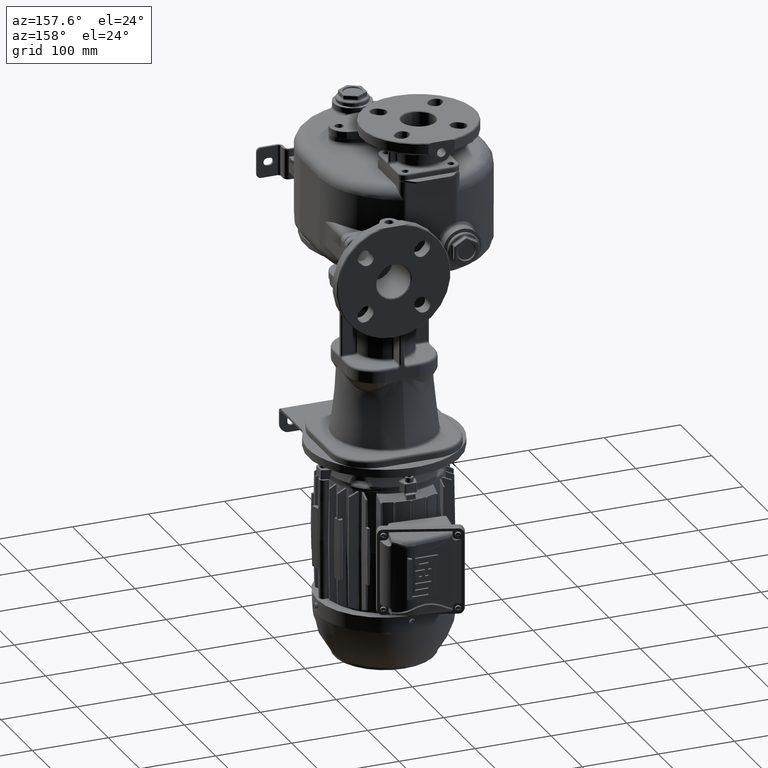
[diagram: clean part render]
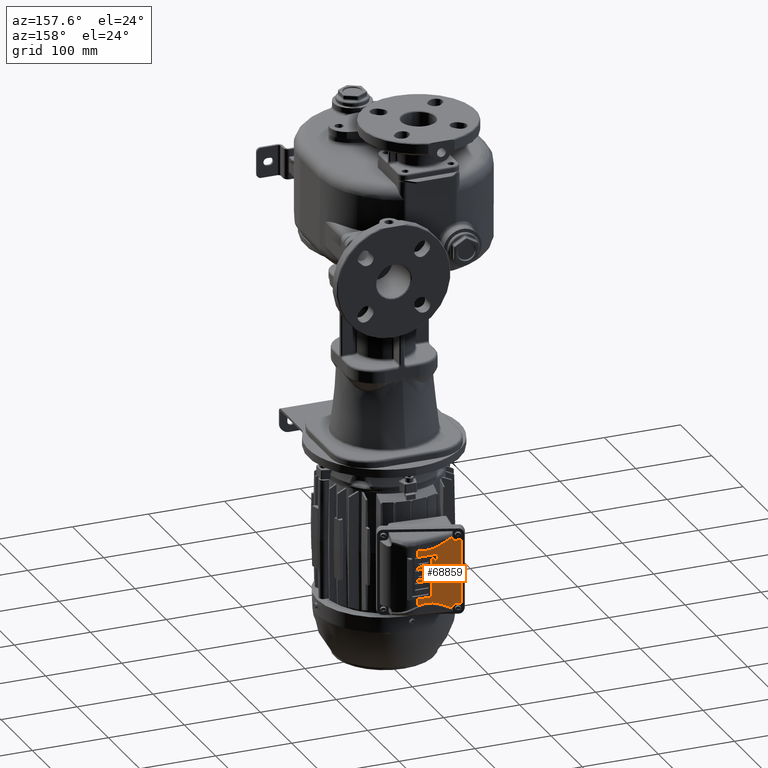
[diagram: same view with one face highlighted and labeled with its STEP entity id]
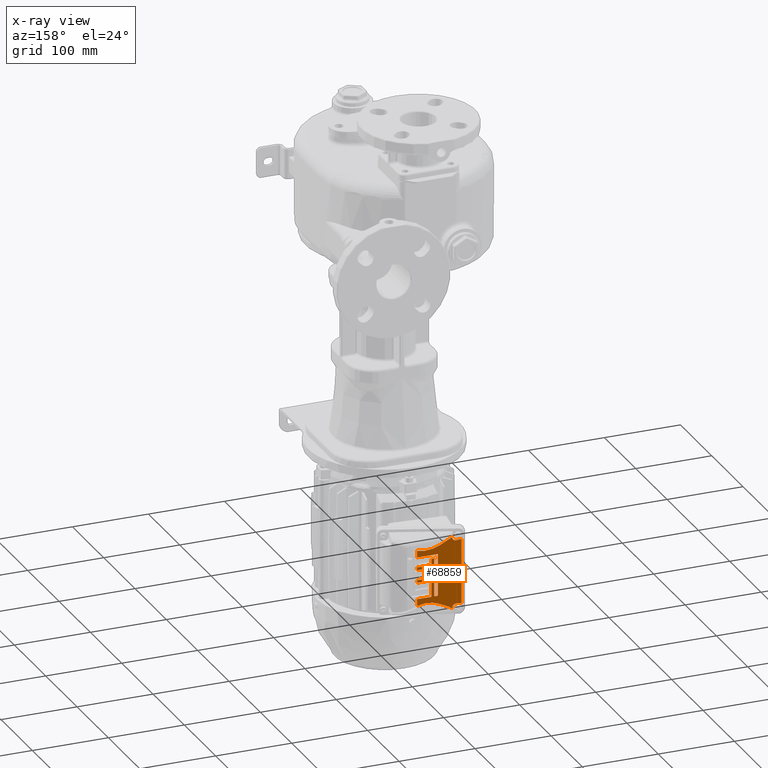
[diagram: x-ray of the same camera — body ghosted, the highlighted face saturated]
A machine part, auxiliary view. The second image highlights one B-rep face of the part: STEP entity #68859.
The next image is the same camera in x-ray: the body ghosted, the highlighted face saturated — about 0% of this face is hidden behind the body in this view.
In plain terms, the highlighted planar face has unit normal (0, -1, 0).
Its self-contained STEP definition (entity closure, byte-faithful):
#16227=DIRECTION('',(0.E0,0.E0,-1.E0));
#16228=VECTOR('',#16227,8.5E1);
#16229=CARTESIAN_POINT('',(-3.743685843754E1,2.657774536875E2,
-4.095007210215E2));
#16230=LINE('',#16229,#16228);
#16409=DIRECTION('',(8.987940462991E-1,0.E0,-4.383711467891E-1));
#16410=VECTOR('',#16409,1.803001470572E1);
#16411=CARTESIAN_POINT('',(-2.538298318595E1,2.657774536875E2,
-4.048518024656E2));
#16412=LINE('',#16411,#16410);
#16413=DIRECTION('',(0.E0,1.258105968686E-13,1.E0));
#16414=VECTOR('',#16413,4.518174166216E-1);
#16415=CARTESIAN_POINT('',(-2.538298318595E1,2.657774536875E2,
-4.053036198823E2));
#16416=LINE('',#16415,#16414);
#16417=DIRECTION('',(9.981864553787E-1,0.E0,-6.019800909087E-2));
#16418=VECTOR('',#16417,6.466191694984E0);
#16419=CARTESIAN_POINT('',(-3.743685843754E1,2.657774536875E2,
-4.095007210215E2));
#16420=LINE('',#16419,#16418);
#16421=DIRECTION('',(-9.981864553787E-1,0.E0,-6.019800909090E-2));
#16422=VECTOR('',#16421,6.466191694984E0);
#16423=CARTESIAN_POINT('',(-3.098239346973E1,2.657774536875E2,
-4.941114691551E2));
#16424=LINE('',#16423,#16422);
#16425=CARTESIAN_POINT('',(-3.098239346973E1,2.657774536875E2,
-4.941114691551E2));
#16426=CARTESIAN_POINT('',(-3.054428850786E1,2.657774536875E2,
-4.940850481930E2));
#16427=CARTESIAN_POINT('',(-2.975239341491E1,2.657774536875E2,
-4.941217590927E2));
#16428=CARTESIAN_POINT('',(-2.873031167259E1,2.657774536875E2,
-4.943528841054E2));
#16429=CARTESIAN_POINT('',(-2.784113988335E1,2.657774536875E2,
-4.947251759983E2));
#16430=CARTESIAN_POINT('',(-2.707038250361E1,2.657774536875E2,
-4.952232387034E2));
#16431=CARTESIAN_POINT('',(-2.641573367365E1,2.657774536875E2,
-4.958446231111E2));
#16432=CARTESIAN_POINT('',(-2.588584674281E1,2.657774536875E2,
-4.965985201536E2));
#16433=CARTESIAN_POINT('',(-2.556698055607E1,2.657774536875E2,
-4.973570969748E2));
#16434=CARTESIAN_POINT('',(-2.541462963808E1,2.657774536875E2,
-4.980730832316E2));
#16435=CARTESIAN_POINT('',(-2.538298318595E1,2.657774536875E2,
-4.984783716967E2));
#16436=CARTESIAN_POINT('',(-2.538298318595E1,2.657774536875E2,
-4.986978221608E2));
#16438=DIRECTION('',(0.E0,-1.258105968687E-13,1.E0));
#16439=VECTOR('',#16438,4.518174166215E-1);
#16440=CARTESIAN_POINT('',(-2.538298318595E1,2.657774536875E2,
-4.991496395774E2));
#16441=LINE('',#16440,#16439);
#16442=DIRECTION('',(-8.987940462991E-1,0.E0,-4.383711467891E-1));
#16443=VECTOR('',#16442,1.803001470572E1);
#16444=CARTESIAN_POINT('',(-9.177713313766E0,2.657774536875E2,
-4.912458013542E2));
#16445=LINE('',#16444,#16443);
#16446=CARTESIAN_POINT('',(9.171895553443E0,2.657774536875E2,
-5.288680749063E2));
#16447=DIRECTION('',(0.E0,-1.E0,0.E0));
#16448=DIRECTION('',(2.777244942154E-1,0.E0,9.606607649492E-1));
#16449=AXIS2_PLACEMENT_3D('',#16446,#16447,#16448);
#16451=DIRECTION('',(0.E0,0.E0,-1.E0));
#16452=VECTOR('',#16451,1.963543390946E1);
#16453=CARTESIAN_POINT('',(1.898528680962E0,2.657774536875E2,
-4.590718929557E2));
#16454=LINE('',#16453,#16452);
#16455=DIRECTION('',(0.E0,0.E0,-1.E0));
#16456=VECTOR('',#16455,1.119098946501E1);
#16457=CARTESIAN_POINT('',(1.898528680962E0,2.657774536875E2,
-4.421830040668E2));
#16458=LINE('',#16457,#16456);
#16459=DIRECTION('',(0.E0,0.E0,1.E0));
#16460=VECTOR('',#16459,6.269305755557E0);
#16461=CARTESIAN_POINT('',(6.820212390417E0,2.657774536875E2,
-4.484523098224E2));
#16462=LINE('',#16461,#16460);
#16463=DIRECTION('',(0.E0,0.E0,-1.E0));
#16464=VECTOR('',#16463,6.269305755556E0);
#16465=CARTESIAN_POINT('',(1.034297312541E1,2.657774536875E2,
-4.421830040668E2));
#16466=LINE('',#16465,#16464);
#16467=DIRECTION('',(0.E0,0.E0,-1.E0));
#16468=VECTOR('',#16467,6.269305755556E0);
#16469=CARTESIAN_POINT('',(1.898528680962E0,2.657774536875E2,
-4.302157988874E2));
#16470=LINE('',#16469,#16468);
#16471=DIRECTION('',(0.E0,0.E0,1.E0));
#16472=VECTOR('',#16471,4.849152797778E1);
#16473=CARTESIAN_POINT('',(-1.624232054028E0,2.657774536875E2,
-4.787073268651E2));
#16474=LINE('',#16473,#16472);
#16475=DIRECTION('',(0.E0,0.E0,-1.E0));
#16476=VECTOR('',#16475,5.341321168723E1);
#16477=CARTESIAN_POINT('',(-6.545915763482E0,2.657774536875E2,
-4.252941151779E2));
#16478=LINE('',#16477,#16476);
#16479=CARTESIAN_POINT('',(9.171895553443E0,2.657774536875E2,
-3.751333671367E2));
#16480=DIRECTION('',(0.E0,-1.E0,0.E0));
#16481=DIRECTION('',(-4.383711467845E-1,0.E0,-8.987940463014E-1));
#16482=AXIS2_PLACEMENT_3D('',#16479,#16480,#16481);
#16484=CARTESIAN_POINT('',(-2.538298318595E1,2.657774536875E2,
-4.048518024656E2));
#16888=CARTESIAN_POINT('',(2.079705815528E1,2.657774536875E2,
-4.153452959709E2));
#16893=DIRECTION('',(5.062250523353E-9,0.E0,1.E0));
#16894=VECTOR('',#16893,8.861249862590E0);
#16895=CARTESIAN_POINT('',(2.079705811042E1,2.657774536875E2,
-4.242065458335E2));
#16896=LINE('',#16895,#16894);
#16911=DIRECTION('',(-1.563179170088E-13,0.E0,1.E0));
#16912=VECTOR('',#16911,3.522760734990E0);
#16913=CARTESIAN_POINT('',(2.079705811042E1,2.657774536875E2,
-4.410954347224E2));
#16914=LINE('',#16913,#16912);
#16929=DIRECTION('',(-8.068021523036E-14,0.E0,1.E0));
#16930=VECTOR('',#16929,3.522760734990E0);
#16931=CARTESIAN_POINT('',(2.079705811042E1,2.657774536875E2,
-4.579843236112E2));
#16932=LINE('',#16931,#16930);
#16993=DIRECTION('',(-5.062239698325E-9,0.E0,1.E0));
#16994=VECTOR('',#16993,8.861249862590E0);
#16995=CARTESIAN_POINT('',(2.079705815528E1,2.657774536875E2,
-4.886561460722E2));
#16996=LINE('',#16995,#16994);
#17064=DIRECTION('',(1.E0,0.E0,1.515512478885E-14));
#17065=VECTOR('',#17064,2.625540452946E1);
#17066=CARTESIAN_POINT('',(-5.458346419038E0,2.657774536875E2,
-4.242065458335E2));
#17067=LINE('',#17066,#17065);
#17092=CARTESIAN_POINT('',(-5.366627095836E-1,2.657774536875E2,
-4.291282295429E2));
#17093=CARTESIAN_POINT('',(-6.272934882873E-1,2.657774536875E2,
-4.291282295429E2));
#17094=CARTESIAN_POINT('',(-7.899706319513E-1,2.657774536875E2,
-4.291468139567E2));
#17095=CARTESIAN_POINT('',(-1.064833873502E0,2.657774536875E2,
-4.292344738299E2));
#17096=CARTESIAN_POINT('',(-1.333396981536E0,2.657774536875E2,
-4.294190646154E2));
#17097=CARTESIAN_POINT('',(-1.517987767021E0,2.657774536875E2,
-4.296876277234E2));
#17098=CARTESIAN_POINT('',(-1.605647640284E0,2.657774536875E2,
-4.299624909650E2));
#17099=CARTESIAN_POINT('',(-1.624232054028E0,2.657774536875E2,
-4.301251681087E2));
#17100=CARTESIAN_POINT('',(-1.624232054028E0,2.657774536875E2,
-4.302157988874E2));
#17112=DIRECTION('',(-1.E0,-4.218053498400E-14,0.E0));
#17113=VECTOR('',#17112,1.347622046102E0);
#17114=CARTESIAN_POINT('',(8.109593365183E-1,2.657774536875E2,
-4.291282295429E2));
#17115=LINE('',#17114,#17113);
#17128=CARTESIAN_POINT('',(1.898528680962E0,2.657774536875E2,
-4.302157988874E2));
#17129=CARTESIAN_POINT('',(1.898528680962E0,2.657774536875E2,
-4.301251681087E2));
#17130=CARTESIAN_POINT('',(1.879944267219E0,2.657774536875E2,
-4.299624909650E2));
#17131=CARTESIAN_POINT('',(1.792284393955E0,2.657774536875E2,
-4.296876277234E2));
#17132=CARTESIAN_POINT('',(1.607693608470E0,2.657774536875E2,
-4.294190646154E2));
#17133=CARTESIAN_POINT('',(1.339130500437E0,2.657774536875E2,
-4.292344738299E2));
#17134=CARTESIAN_POINT('',(1.064267258886E0,2.657774536875E2,
-4.291468139567E2));
#17135=CARTESIAN_POINT('',(9.015901152222E-1,2.657774536875E2,
-4.291282295429E2));
#17136=CARTESIAN_POINT('',(8.109593365186E-1,2.657774536875E2,
-4.291282295429E2));
#17160=CARTESIAN_POINT('',(2.986098025406E0,2.657774536875E2,
-4.375726739874E2));
#17161=CARTESIAN_POINT('',(2.895467246702E0,2.657774536875E2,
-4.375726739874E2));
#17162=CARTESIAN_POINT('',(2.732790103038E0,2.657774536875E2,
-4.375540895736E2));
#17163=CARTESIAN_POINT('',(2.457926861487E0,2.657774536875E2,
-4.374664297004E2));
#17164=CARTESIAN_POINT('',(2.189363753454E0,2.657774536875E2,
-4.372818389149E2));
#17165=CARTESIAN_POINT('',(2.004772967969E0,2.657774536875E2,
-4.370132758068E2));
#17166=CARTESIAN_POINT('',(1.917113094705E0,2.657774536875E2,
-4.367384125653E2));
#17167=CARTESIAN_POINT('',(1.898528680962E0,2.657774536875E2,
-4.365757354216E2));
#17168=CARTESIAN_POINT('',(1.898528680962E0,2.657774536875E2,
-4.364851046429E2));
#17180=DIRECTION('',(-1.E0,0.E0,0.E0));
#17181=VECTOR('',#17180,1.781096008502E1);
#17182=CARTESIAN_POINT('',(2.079705811042E1,2.657774536875E2,
-4.375726739874E2));
#17183=LINE('',#17182,#17181);
#17290=CARTESIAN_POINT('',(-1.624232054028E0,2.657774536875E2,
-4.787073268651E2));
#17291=CARTESIAN_POINT('',(-1.624232054028E0,2.657774536875E2,
-4.787979576438E2));
#17292=CARTESIAN_POINT('',(-1.642816467771E0,2.657774536875E2,
-4.789606347875E2));
#17293=CARTESIAN_POINT('',(-1.730476341034E0,2.657774536875E2,
-4.792354980291E2));
#17294=CARTESIAN_POINT('',(-1.915067126520E0,2.657774536875E2,
-4.795040611371E2));
#17295=CARTESIAN_POINT('',(-2.183630234553E0,2.657774536875E2,
-4.796886519226E2));
#17296=CARTESIAN_POINT('',(-2.458493476104E0,2.657774536875E2,
-4.797763117958E2));
#17297=CARTESIAN_POINT('',(-2.621170619768E0,2.657774536875E2,
-4.797948962096E2));
#17298=CARTESIAN_POINT('',(-2.711801398472E0,2.657774536875E2,
-4.797948962096E2));
#17318=DIRECTION('',(-1.E0,0.E0,-4.139267220100E-14));
#17319=VECTOR('',#17318,2.746545020567E0);
#17320=CARTESIAN_POINT('',(-2.711801398472E0,2.657774536875E2,
-4.797948962096E2));
#17321=LINE('',#17320,#17319);
#17326=CARTESIAN_POINT('',(-5.458346419038E0,2.657774536875E2,
-4.797948962096E2));
#17327=CARTESIAN_POINT('',(-5.548977197742E0,2.657774536875E2,
-4.797948962096E2));
#17328=CARTESIAN_POINT('',(-5.711654341406E0,2.657774536875E2,
-4.797763117958E2));
#17329=CARTESIAN_POINT('',(-5.986517582957E0,2.657774536875E2,
-4.796886519226E2));
#17330=CARTESIAN_POINT('',(-6.255080690990E0,2.657774536875E2,
-4.795040611371E2));
#17331=CARTESIAN_POINT('',(-6.439671476475E0,2.657774536875E2,
-4.792354980291E2));
#17332=CARTESIAN_POINT('',(-6.527331349739E0,2.657774536875E2,
-4.789606347875E2));
#17333=CARTESIAN_POINT('',(-6.545915763482E0,2.657774536875E2,
-4.787979576438E2));
#17334=CARTESIAN_POINT('',(-6.545915763482E0,2.657774536875E2,
-4.787073268651E2));
#17358=CARTESIAN_POINT('',(-6.545915763482E0,2.657774536875E2,
-4.252941151779E2));
#17359=CARTESIAN_POINT('',(-6.545915763482E0,2.657774536875E2,
-4.252034843992E2));
#17360=CARTESIAN_POINT('',(-6.527331349739E0,2.657774536875E2,
-4.250408072555E2));
#17361=CARTESIAN_POINT('',(-6.439671476475E0,2.657774536875E2,
-4.247659440140E2));
#17362=CARTESIAN_POINT('',(-6.255080690990E0,2.657774536875E2,
-4.244973809060E2));
#17363=CARTESIAN_POINT('',(-5.986517582957E0,2.657774536875E2,
-4.243127901205E2));
#17364=CARTESIAN_POINT('',(-5.711654341406E0,2.657774536875E2,
-4.242251302472E2));
#17365=CARTESIAN_POINT('',(-5.548977197742E0,2.657774536875E2,
-4.242065458335E2));
#17366=CARTESIAN_POINT('',(-5.458346419038E0,2.657774536875E2,
-4.242065458335E2));
#17522=DIRECTION('',(1.E0,0.E0,1.213758051384E-14));
#17523=VECTOR('',#17522,9.366515640574E0);
#17524=CARTESIAN_POINT('',(1.143054246985E1,2.657774536875E2,
-4.410954347224E2));
#17525=LINE('',#17524,#17523);
#17550=CARTESIAN_POINT('',(9.255403780963E0,2.657774536875E2,
-4.495398791668E2));
#17551=CARTESIAN_POINT('',(9.346034559666E0,2.657774536875E2,
-4.495398791668E2));
#17552=CARTESIAN_POINT('',(9.508711703330E0,2.657774536875E2,
-4.495212947531E2));
#17553=CARTESIAN_POINT('',(9.783574944881E0,2.657774536875E2,
-4.494336348798E2));
#17554=CARTESIAN_POINT('',(1.005213805291E1,2.657774536875E2,
-4.492490440943E2));
#17555=CARTESIAN_POINT('',(1.023672883840E1,2.657774536875E2,
-4.489804809863E2));
#17556=CARTESIAN_POINT('',(1.032438871166E1,2.657774536875E2,
-4.487056177447E2));
#17557=CARTESIAN_POINT('',(1.034297312541E1,2.657774536875E2,
-4.485429406011E2));
#17558=CARTESIAN_POINT('',(1.034297312541E1,2.657774536875E2,
-4.484523098224E2));
#17578=DIRECTION('',(1.E0,0.E0,0.E0));
#17579=VECTOR('',#17578,1.347622046102E0);
#17580=CARTESIAN_POINT('',(7.907781734861E0,2.657774536875E2,
-4.495398791668E2));
#17581=LINE('',#17580,#17579);
#17586=CARTESIAN_POINT('',(6.820212390417E0,2.657774536875E2,
-4.484523098224E2));
#17587=CARTESIAN_POINT('',(6.820212390417E0,2.657774536875E2,
-4.485429406011E2));
#17588=CARTESIAN_POINT('',(6.838796804160E0,2.657774536875E2,
-4.487056177447E2));
#17589=CARTESIAN_POINT('',(6.926456677424E0,2.657774536875E2,
-4.489804809863E2));
#17590=CARTESIAN_POINT('',(7.111047462909E0,2.657774536875E2,
-4.492490440943E2));
#17591=CARTESIAN_POINT('',(7.379610570942E0,2.657774536875E2,
-4.494336348798E2));
#17592=CARTESIAN_POINT('',(7.654473812493E0,2.657774536875E2,
-4.495212947531E2));
#17593=CARTESIAN_POINT('',(7.817150956157E0,2.657774536875E2,
-4.495398791668E2));
#17594=CARTESIAN_POINT('',(7.907781734861E0,2.657774536875E2,
-4.495398791668E2));
#17618=CARTESIAN_POINT('',(5.732643045973E0,2.657774536875E2,
-4.410954347224E2));
#17619=CARTESIAN_POINT('',(5.823273824677E0,2.657774536875E2,
-4.410954347224E2));
#17620=CARTESIAN_POINT('',(5.985950968340E0,2.657774536875E2,
-4.411140191361E2));
#17621=CARTESIAN_POINT('',(6.260814209892E0,2.657774536875E2,
-4.412016790094E2));
#17622=CARTESIAN_POINT('',(6.529377317925E0,2.657774536875E2,
-4.413862697948E2));
#17623=CARTESIAN_POINT('',(6.713968103410E0,2.657774536875E2,
-4.416548329029E2));
#17624=CARTESIAN_POINT('',(6.801627976673E0,2.657774536875E2,
-4.419296961444E2));
#17625=CARTESIAN_POINT('',(6.820212390417E0,2.657774536875E2,
-4.420923732881E2));
#17626=CARTESIAN_POINT('',(6.820212390417E0,2.657774536875E2,
-4.421830040668E2));
#17646=DIRECTION('',(1.E0,2.069633610050E-14,2.069633610050E-14));
#17647=VECTOR('',#17646,2.746545020567E0);
#17648=CARTESIAN_POINT('',(2.986098025406E0,2.657774536875E2,
-4.410954347224E2));
#17649=LINE('',#17648,#17647);
#17654=CARTESIAN_POINT('',(1.898528680962E0,2.657774536875E2,
-4.421830040668E2));
#17655=CARTESIAN_POINT('',(1.898528680962E0,2.657774536875E2,
-4.420923732881E2));
#17656=CARTESIAN_POINT('',(1.917113094705E0,2.657774536875E2,
-4.419296961444E2));
#17657=CARTESIAN_POINT('',(2.004772967969E0,2.657774536875E2,
-4.416548329029E2));
#17658=CARTESIAN_POINT('',(2.189363753454E0,2.657774536875E2,
-4.413862697948E2));
#17659=CARTESIAN_POINT('',(2.457926861487E0,2.657774536875E2,
-4.412016790094E2));
#17660=CARTESIAN_POINT('',(2.732790103038E0,2.657774536875E2,
-4.411140191361E2));
#17661=CARTESIAN_POINT('',(2.895467246702E0,2.657774536875E2,
-4.410954347224E2));
#17662=CARTESIAN_POINT('',(2.986098025406E0,2.657774536875E2,
-4.410954347224E2));
#17686=CARTESIAN_POINT('',(2.986098025406E0,2.657774536875E2,
-4.544615628763E2));
#17687=CARTESIAN_POINT('',(2.895467246702E0,2.657774536875E2,
-4.544615628763E2));
#17688=CARTESIAN_POINT('',(2.732790103038E0,2.657774536875E2,
-4.544429784625E2));
#17689=CARTESIAN_POINT('',(2.457926861487E0,2.657774536875E2,
-4.543553185892E2));
#17690=CARTESIAN_POINT('',(2.189363753454E0,2.657774536875E2,
-4.541707278038E2));
#17691=CARTESIAN_POINT('',(2.004772967969E0,2.657774536875E2,
-4.539021646957E2));
#17692=CARTESIAN_POINT('',(1.917113094705E0,2.657774536875E2,
-4.536273014542E2));
#17693=CARTESIAN_POINT('',(1.898528680962E0,2.657774536875E2,
-4.534646243105E2));
#17694=CARTESIAN_POINT('',(1.898528680962E0,2.657774536875E2,
-4.533739935318E2));
#17706=DIRECTION('',(-1.E0,0.E0,-1.914891232909E-14));
#17707=VECTOR('',#17706,1.781096008502E1);
#17708=CARTESIAN_POINT('',(2.079705811042E1,2.657774536875E2,
-4.544615628763E2));
#17709=LINE('',#17708,#17707);
#17816=CARTESIAN_POINT('',(1.034297312541E1,2.657774536875E2,
-4.421830040668E2));
#17817=CARTESIAN_POINT('',(1.034297312541E1,2.657774536875E2,
-4.420923732881E2));
#17818=CARTESIAN_POINT('',(1.036155753915E1,2.657774536875E2,
-4.419296961444E2));
#17819=CARTESIAN_POINT('',(1.044921741241E1,2.657774536875E2,
-4.416548329029E2));
#17820=CARTESIAN_POINT('',(1.063380819790E1,2.657774536875E2,
-4.413862697948E2));
#17821=CARTESIAN_POINT('',(1.090237130593E1,2.657774536875E2,
-4.412016790094E2));
#17822=CARTESIAN_POINT('',(1.117723454748E1,2.657774536875E2,
-4.411140191361E2));
#17823=CARTESIAN_POINT('',(1.133991169115E1,2.657774536875E2,
-4.410954347224E2));
#17824=CARTESIAN_POINT('',(1.143054246985E1,2.657774536875E2,
-4.410954347224E2));
#17980=DIRECTION('',(1.E0,0.E0,1.595742694090E-14));
#17981=VECTOR('',#17980,1.781096008502E1);
#17982=CARTESIAN_POINT('',(2.986098025406E0,2.657774536875E2,
-4.579843236112E2));
#17983=LINE('',#17982,#17981);
#18000=CARTESIAN_POINT('',(2.986098025406E0,2.657774536875E2,
-4.797948962096E2));
#18001=CARTESIAN_POINT('',(2.895467246702E0,2.657774536875E2,
-4.797948962096E2));
#18002=CARTESIAN_POINT('',(2.732790103038E0,2.657774536875E2,
-4.797763117958E2));
#18003=CARTESIAN_POINT('',(2.457926861487E0,2.657774536875E2,
-4.796886519226E2));
#18004=CARTESIAN_POINT('',(2.189363753454E0,2.657774536875E2,
-4.795040611371E2));
#18005=CARTESIAN_POINT('',(2.004772967969E0,2.657774536875E2,
-4.792354980291E2));
#18006=CARTESIAN_POINT('',(1.917113094705E0,2.657774536875E2,
-4.789606347875E2));
#18007=CARTESIAN_POINT('',(1.898528680962E0,2.657774536875E2,
-4.787979576438E2));
#18008=CARTESIAN_POINT('',(1.898528680962E0,2.657774536875E2,
-4.787073268651E2));
#18020=DIRECTION('',(-1.E0,0.E0,-1.276594155272E-14));
#18021=VECTOR('',#18020,1.781096008502E1);
#18022=CARTESIAN_POINT('',(2.079705811042E1,2.657774536875E2,
-4.797948962096E2));
#18023=LINE('',#18022,#18021);
#18611=CARTESIAN_POINT('',(1.898528680962E0,2.657774536875E2,
-4.590718929557E2));
#18612=CARTESIAN_POINT('',(1.898528680962E0,2.657774536875E2,
-4.589812621770E2));
#18613=CARTESIAN_POINT('',(1.917113094705E0,2.657774536875E2,
-4.588185850333E2));
#18614=CARTESIAN_POINT('',(2.004772967969E0,2.657774536875E2,
-4.585437217918E2));
#18615=CARTESIAN_POINT('',(2.189363753454E0,2.657774536875E2,
-4.582751586837E2));
#18616=CARTESIAN_POINT('',(2.457926861487E0,2.657774536875E2,
-4.580905678983E2));
#18617=CARTESIAN_POINT('',(2.732790103039E0,2.657774536875E2,
-4.580029080250E2));
#18618=CARTESIAN_POINT('',(2.895467246703E0,2.657774536875E2,
-4.579843236112E2));
#18619=CARTESIAN_POINT('',(2.986098025406E0,2.657774536875E2,
-4.579843236112E2));
#18912=CARTESIAN_POINT('',(-2.538298318595E1,2.657774536875E2,
-4.991496395774E2));
#19212=CARTESIAN_POINT('',(-2.538298318595E1,2.657774536875E2,
-4.053036198823E2));
#19213=CARTESIAN_POINT('',(-2.538298318595E1,2.657774536875E2,
-4.055230703464E2));
#19214=CARTESIAN_POINT('',(-2.541462963808E1,2.657774536875E2,
-4.059283588115E2));
#19215=CARTESIAN_POINT('',(-2.556698055607E1,2.657774536875E2,
-4.066443450683E2));
#19216=CARTESIAN_POINT('',(-2.588584674281E1,2.657774536875E2,
-4.074029218895E2));
#19217=CARTESIAN_POINT('',(-2.641573367365E1,2.657774536875E2,
-4.081568189319E2));
#19218=CARTESIAN_POINT('',(-2.707038250361E1,2.657774536875E2,
-4.087782033397E2));
#19219=CARTESIAN_POINT('',(-2.784113988335E1,2.657774536875E2,
-4.092762660447E2));
#19220=CARTESIAN_POINT('',(-2.873031167259E1,2.657774536875E2,
-4.096485579376E2));
#19221=CARTESIAN_POINT('',(-2.975239341491E1,2.657774536875E2,
-4.098796829504E2));
#19222=CARTESIAN_POINT('',(-3.054428850786E1,2.657774536875E2,
-4.099163938500E2));
#19223=CARTESIAN_POINT('',(-3.098239346973E1,2.657774536875E2,
-4.098899728880E2));
#44396=VERTEX_POINT('',#16484);
#44398=CARTESIAN_POINT('',(-2.538298318595E1,2.657774536875E2,
-4.053036198823E2));
#44399=VERTEX_POINT('',#44398);
#44409=CARTESIAN_POINT('',(-2.538298318595E1,2.657774536875E2,
-4.986978221608E2));
#44411=VERTEX_POINT('',#44409);
#44413=VERTEX_POINT('',#18912);
#44430=CARTESIAN_POINT('',(1.898528680962E0,2.657774536875E2,
-4.421830040668E2));
#44431=CARTESIAN_POINT('',(1.898528680962E0,2.657774536875E2,
-4.533739935318E2));
#44432=VERTEX_POINT('',#44430);
#44433=VERTEX_POINT('',#44431);
#44434=CARTESIAN_POINT('',(-3.743685843754E1,2.657774536875E2,
-4.095007210215E2));
#44435=CARTESIAN_POINT('',(-3.743685843754E1,2.657774536875E2,
-4.945007210215E2));
#44436=VERTEX_POINT('',#44434);
#44437=VERTEX_POINT('',#44435);
#44442=VERTEX_POINT('',#18000);
#44443=VERTEX_POINT('',#18008);
#44444=CARTESIAN_POINT('',(1.034297312541E1,2.657774536875E2,
-4.421830040668E2));
#44445=CARTESIAN_POINT('',(1.034297312541E1,2.657774536875E2,
-4.484523098224E2));
#44446=VERTEX_POINT('',#44444);
#44447=VERTEX_POINT('',#44445);
#44455=CARTESIAN_POINT('',(-9.177713313766E0,2.657774536875E2,
-4.912458013542E2));
#44456=VERTEX_POINT('',#44455);
#44457=VERTEX_POINT('',#16425);
#44458=VERTEX_POINT('',#17586);
#44459=VERTEX_POINT('',#17594);
#44460=VERTEX_POINT('',#17686);
#44461=CARTESIAN_POINT('',(2.079705811042E1,2.657774536875E2,
-4.886561462243E2));
#44462=VERTEX_POINT('',#44461);
#44463=CARTESIAN_POINT('',(2.986098025406E0,2.657774536875E2,
-4.410954347224E2));
#44464=CARTESIAN_POINT('',(5.732643045973E0,2.657774536875E2,
-4.410954347224E2));
#44465=VERTEX_POINT('',#44463);
#44466=VERTEX_POINT('',#44464);
#44467=CARTESIAN_POINT('',(2.079705811042E1,2.657774536875E2,
-4.797948962096E2));
#44468=VERTEX_POINT('',#44467);
#44475=VERTEX_POINT('',#16888);
#44485=VERTEX_POINT('',#18611);
#44486=VERTEX_POINT('',#18619);
#44487=CARTESIAN_POINT('',(-3.098239346973E1,2.657774536875E2,
-4.098899728880E2));
#44488=VERTEX_POINT('',#44487);
#44489=VERTEX_POINT('',#17626);
#44490=VERTEX_POINT('',#17824);
#44495=VERTEX_POINT('',#17550);
#44496=CARTESIAN_POINT('',(2.079705811042E1,2.657774536875E2,
-4.579843236112E2));
#44497=VERTEX_POINT('',#44496);
#44498=CARTESIAN_POINT('',(2.079705811042E1,2.657774536875E2,
-4.544615628763E2));
#44499=VERTEX_POINT('',#44498);
#44629=CARTESIAN_POINT('',(-5.458346419038E0,2.657774536875E2,
-4.242065458335E2));
#44630=VERTEX_POINT('',#44629);
#44637=CARTESIAN_POINT('',(-5.366627095836E-1,2.657774536875E2,
-4.291282295429E2));
#44639=VERTEX_POINT('',#44637);
#44644=CARTESIAN_POINT('',(-2.711801398472E0,2.657774536875E2,
-4.797948962096E2));
#44646=VERTEX_POINT('',#44644);
#44648=CARTESIAN_POINT('',(-1.624232054028E0,2.657774536875E2,
-4.302157988874E2));
#44650=VERTEX_POINT('',#44648);
#44651=CARTESIAN_POINT('',(2.986098025406E0,2.657774536875E2,
-4.375726739874E2));
#44652=VERTEX_POINT('',#44651);
#44654=CARTESIAN_POINT('',(-6.545915763482E0,2.657774536875E2,
-4.787073268651E2));
#44656=VERTEX_POINT('',#44654);
#44657=CARTESIAN_POINT('',(-5.458346419038E0,2.657774536875E2,
-4.797948962096E2));
#44659=VERTEX_POINT('',#44657);
#44661=CARTESIAN_POINT('',(1.898528680962E0,2.657774536875E2,
-4.302157988874E2));
#44663=VERTEX_POINT('',#44661);
#44665=CARTESIAN_POINT('',(-6.545915763482E0,2.657774536875E2,
-4.252941151779E2));
#44667=VERTEX_POINT('',#44665);
#44677=CARTESIAN_POINT('',(-1.624232054028E0,2.657774536875E2,
-4.787073268651E2));
#44679=VERTEX_POINT('',#44677);
#44681=CARTESIAN_POINT('',(8.109593365183E-1,2.657774536875E2,
-4.291282295429E2));
#44682=VERTEX_POINT('',#44681);
#44698=CARTESIAN_POINT('',(1.898528680962E0,2.657774536875E2,
-4.364851046429E2));
#44699=VERTEX_POINT('',#44698);
#44765=CARTESIAN_POINT('',(2.079705811042E1,2.657774536875E2,
-4.410954347224E2));
#44766=CARTESIAN_POINT('',(2.079705811042E1,2.657774536875E2,
-4.375726739874E2));
#44767=VERTEX_POINT('',#44765);
#44768=VERTEX_POINT('',#44766);
#44769=CARTESIAN_POINT('',(-9.177713313766E0,2.657774536875E2,
-4.127556406888E2));
#44770=VERTEX_POINT('',#44769);
#44771=CARTESIAN_POINT('',(2.079705811042E1,2.657774536875E2,
-4.242065458335E2));
#44772=VERTEX_POINT('',#44771);
#68762=CARTESIAN_POINT('',(2.079705811042E1,2.657774536875E2,
-5.087007210215E2));
#68763=DIRECTION('',(0.E0,-1.E0,0.E0));
#68764=DIRECTION('',(-1.E0,0.E0,-1.474105982104E-14));
#68765=AXIS2_PLACEMENT_3D('',#68762,#68763,#68764);
#68766=PLANE('',#68765);
#68768=ORIENTED_EDGE('',*,*,#68767,.F.);
#68770=ORIENTED_EDGE('',*,*,#68769,.F.);
#68772=ORIENTED_EDGE('',*,*,#68771,.T.);
#68774=ORIENTED_EDGE('',*,*,#68773,.F.);
#68775=ORIENTED_EDGE('',*,*,#68602,.T.);
#68776=ORIENTED_EDGE('',*,*,#68754,.F.);
#68778=ORIENTED_EDGE('',*,*,#68777,.T.);
#68780=ORIENTED_EDGE('',*,*,#68779,.F.);
#68782=ORIENTED_EDGE('',*,*,#68781,.F.);
#68784=ORIENTED_EDGE('',*,*,#68783,.F.);
#68786=ORIENTED_EDGE('',*,*,#68785,.T.);
#68788=ORIENTED_EDGE('',*,*,#68787,.T.);
#68790=ORIENTED_EDGE('',*,*,#68789,.T.);
#68792=ORIENTED_EDGE('',*,*,#68791,.F.);
#68794=ORIENTED_EDGE('',*,*,#68793,.T.);
#68796=ORIENTED_EDGE('',*,*,#68795,.T.);
#68798=ORIENTED_EDGE('',*,*,#68797,.T.);
#68800=ORIENTED_EDGE('',*,*,#68799,.T.);
#68802=ORIENTED_EDGE('',*,*,#68801,.T.);
#68804=ORIENTED_EDGE('',*,*,#68803,.F.);
#68806=ORIENTED_EDGE('',*,*,#68805,.T.);
#68808=ORIENTED_EDGE('',*,*,#68807,.T.);
#68810=ORIENTED_EDGE('',*,*,#68809,.T.);
#68812=ORIENTED_EDGE('',*,*,#68811,.F.);
#68814=ORIENTED_EDGE('',*,*,#68813,.T.);
#68816=ORIENTED_EDGE('',*,*,#68815,.T.);
#68818=ORIENTED_EDGE('',*,*,#68817,.T.);
#68820=ORIENTED_EDGE('',*,*,#68819,.F.);
#68822=ORIENTED_EDGE('',*,*,#68821,.T.);
#68824=ORIENTED_EDGE('',*,*,#68823,.T.);
#68826=ORIENTED_EDGE('',*,*,#68825,.T.);
#68828=ORIENTED_EDGE('',*,*,#68827,.T.);
#68830=ORIENTED_EDGE('',*,*,#68829,.T.);
#68832=ORIENTED_EDGE('',*,*,#68831,.F.);
#68834=ORIENTED_EDGE('',*,*,#68833,.T.);
#68836=ORIENTED_EDGE('',*,*,#68835,.T.);
#68838=ORIENTED_EDGE('',*,*,#68837,.T.);
#68840=ORIENTED_EDGE('',*,*,#68839,.F.);
#68842=ORIENTED_EDGE('',*,*,#68841,.T.);
#68844=ORIENTED_EDGE('',*,*,#68843,.T.);
#68846=ORIENTED_EDGE('',*,*,#68845,.T.);
#68848=ORIENTED_EDGE('',*,*,#68847,.F.);
#68850=ORIENTED_EDGE('',*,*,#68849,.T.);
#68852=ORIENTED_EDGE('',*,*,#68851,.T.);
#68854=ORIENTED_EDGE('',*,*,#68853,.T.);
#68856=ORIENTED_EDGE('',*,*,#68855,.F.);
#68857=EDGE_LOOP('',(#68768,#68770,#68772,#68774,#68775,#68776,#68778,#68780,
#68782,#68784,#68786,#68788,#68790,#68792,#68794,#68796,#68798,#68800,#68802,
#68804,#68806,#68808,#68810,#68812,#68814,#68816,#68818,#68820,#68822,#68824,
#68826,#68828,#68830,#68832,#68834,#68836,#68838,#68840,#68842,#68844,#68846,
#68848,#68850,#68852,#68854,#68856));
#68858=FACE_OUTER_BOUND('',#68857,.F.);
#68859=ADVANCED_FACE('',(#68858),#68766,.F.);
#16437=B_SPLINE_CURVE_WITH_KNOTS('',3,(#16425,#16426,#16427,#16428,#16429,
#16430,#16431,#16432,#16433,#16434,#16435,#16436),.UNSPECIFIED.,.F.,.F.,(4,1,1,
1,1,1,1,1,1,4),(0.E0,1.25E-1,2.5E-1,3.75E-1,5.E-1,6.25E-1,7.5E-1,8.75E-1,
9.375E-1,1.E0),.UNSPECIFIED.);
#16450=CIRCLE('',#16449,4.185861455909E1);
#16483=CIRCLE('',#16482,4.185861455909E1);
#17101=B_SPLINE_CURVE_WITH_KNOTS('',3,(#17092,#17093,#17094,#17095,#17096,
#17097,#17098,#17099,#17100),.UNSPECIFIED.,.F.,.F.,(4,1,1,1,1,1,4),(0.E0,
1.25E-1,2.5E-1,5.E-1,7.5E-1,8.75E-1,1.E0),.UNSPECIFIED.);
#17137=B_SPLINE_CURVE_WITH_KNOTS('',3,(#17128,#17129,#17130,#17131,#17132,
#17133,#17134,#17135,#17136),.UNSPECIFIED.,.F.,.F.,(4,1,1,1,1,1,4),(0.E0,
1.25E-1,2.5E-1,5.E-1,7.5E-1,8.75E-1,1.E0),.UNSPECIFIED.);
#17169=B_SPLINE_CURVE_WITH_KNOTS('',3,(#17160,#17161,#17162,#17163,#17164,
#17165,#17166,#17167,#17168),.UNSPECIFIED.,.F.,.F.,(4,1,1,1,1,1,4),(0.E0,
1.25E-1,2.5E-1,5.E-1,7.5E-1,8.75E-1,1.E0),.UNSPECIFIED.);
#17299=B_SPLINE_CURVE_WITH_KNOTS('',3,(#17290,#17291,#17292,#17293,#17294,
#17295,#17296,#17297,#17298),.UNSPECIFIED.,.F.,.F.,(4,1,1,1,1,1,4),(0.E0,
1.25E-1,2.5E-1,5.E-1,7.5E-1,8.75E-1,1.E0),.UNSPECIFIED.);
#17335=B_SPLINE_CURVE_WITH_KNOTS('',3,(#17326,#17327,#17328,#17329,#17330,
#17331,#17332,#17333,#17334),.UNSPECIFIED.,.F.,.F.,(4,1,1,1,1,1,4),(0.E0,
1.25E-1,2.5E-1,5.E-1,7.5E-1,8.75E-1,1.E0),.UNSPECIFIED.);
#17367=B_SPLINE_CURVE_WITH_KNOTS('',3,(#17358,#17359,#17360,#17361,#17362,
#17363,#17364,#17365,#17366),.UNSPECIFIED.,.F.,.F.,(4,1,1,1,1,1,4),(0.E0,
1.25E-1,2.5E-1,5.E-1,7.5E-1,8.75E-1,1.E0),.UNSPECIFIED.);
#17559=B_SPLINE_CURVE_WITH_KNOTS('',3,(#17550,#17551,#17552,#17553,#17554,
#17555,#17556,#17557,#17558),.UNSPECIFIED.,.F.,.F.,(4,1,1,1,1,1,4),(0.E0,
1.25E-1,2.5E-1,5.E-1,7.5E-1,8.75E-1,1.E0),.UNSPECIFIED.);
#17595=B_SPLINE_CURVE_WITH_KNOTS('',3,(#17586,#17587,#17588,#17589,#17590,
#17591,#17592,#17593,#17594),.UNSPECIFIED.,.F.,.F.,(4,1,1,1,1,1,4),(0.E0,
1.25E-1,2.5E-1,5.E-1,7.5E-1,8.75E-1,1.E0),.UNSPECIFIED.);
#17627=B_SPLINE_CURVE_WITH_KNOTS('',3,(#17618,#17619,#17620,#17621,#17622,
#17623,#17624,#17625,#17626),.UNSPECIFIED.,.F.,.F.,(4,1,1,1,1,1,4),(0.E0,
1.25E-1,2.5E-1,5.E-1,7.5E-1,8.75E-1,1.E0),.UNSPECIFIED.);
#17663=B_SPLINE_CURVE_WITH_KNOTS('',3,(#17654,#17655,#17656,#17657,#17658,
#17659,#17660,#17661,#17662),.UNSPECIFIED.,.F.,.F.,(4,1,1,1,1,1,4),(0.E0,
1.25E-1,2.5E-1,5.E-1,7.5E-1,8.75E-1,1.E0),.UNSPECIFIED.);
#17695=B_SPLINE_CURVE_WITH_KNOTS('',3,(#17686,#17687,#17688,#17689,#17690,
#17691,#17692,#17693,#17694),.UNSPECIFIED.,.F.,.F.,(4,1,1,1,1,1,4),(0.E0,
1.25E-1,2.5E-1,5.E-1,7.5E-1,8.75E-1,1.E0),.UNSPECIFIED.);
#17825=B_SPLINE_CURVE_WITH_KNOTS('',3,(#17816,#17817,#17818,#17819,#17820,
#17821,#17822,#17823,#17824),.UNSPECIFIED.,.F.,.F.,(4,1,1,1,1,1,4),(0.E0,
1.25E-1,2.5E-1,5.E-1,7.5E-1,8.75E-1,1.E0),.UNSPECIFIED.);
#18009=B_SPLINE_CURVE_WITH_KNOTS('',3,(#18000,#18001,#18002,#18003,#18004,
#18005,#18006,#18007,#18008),.UNSPECIFIED.,.F.,.F.,(4,1,1,1,1,1,4),(0.E0,
1.25E-1,2.5E-1,5.E-1,7.5E-1,8.75E-1,1.E0),.UNSPECIFIED.);
#18620=B_SPLINE_CURVE_WITH_KNOTS('',3,(#18611,#18612,#18613,#18614,#18615,
#18616,#18617,#18618,#18619),.UNSPECIFIED.,.F.,.F.,(4,1,1,1,1,1,4),(0.E0,
1.25E-1,2.5E-1,5.E-1,7.5E-1,8.75E-1,1.E0),.UNSPECIFIED.);
#19224=B_SPLINE_CURVE_WITH_KNOTS('',3,(#19212,#19213,#19214,#19215,#19216,
#19217,#19218,#19219,#19220,#19221,#19222,#19223),.UNSPECIFIED.,.F.,.F.,(4,1,1,
1,1,1,1,1,1,4),(0.E0,6.25E-2,1.25E-1,2.5E-1,3.75E-1,5.E-1,6.25E-1,7.5E-1,
8.75E-1,1.E0),.UNSPECIFIED.);
#68602=EDGE_CURVE('',#44436,#44437,#16230,.T.);
#68754=EDGE_CURVE('',#44457,#44437,#16424,.T.);
#68767=EDGE_CURVE('',#44396,#44770,#16412,.T.);
#68769=EDGE_CURVE('',#44399,#44396,#16416,.T.);
#68771=EDGE_CURVE('',#44399,#44488,#19224,.T.);
#68773=EDGE_CURVE('',#44436,#44488,#16420,.T.);
#68777=EDGE_CURVE('',#44457,#44411,#16437,.T.);
#68779=EDGE_CURVE('',#44413,#44411,#16441,.T.);
#68781=EDGE_CURVE('',#44456,#44413,#16445,.T.);
#68783=EDGE_CURVE('',#44462,#44456,#16450,.T.);
#68785=EDGE_CURVE('',#44462,#44468,#16996,.T.);
#68787=EDGE_CURVE('',#44468,#44442,#18023,.T.);
#68789=EDGE_CURVE('',#44442,#44443,#18009,.T.);
#68791=EDGE_CURVE('',#44485,#44443,#16454,.T.);
#68793=EDGE_CURVE('',#44485,#44486,#18620,.T.);
#68795=EDGE_CURVE('',#44486,#44497,#17983,.T.);
#68797=EDGE_CURVE('',#44497,#44499,#16932,.T.);
#68799=EDGE_CURVE('',#44499,#44460,#17709,.T.);
#68801=EDGE_CURVE('',#44460,#44433,#17695,.T.);
#68803=EDGE_CURVE('',#44432,#44433,#16458,.T.);
#68805=EDGE_CURVE('',#44432,#44465,#17663,.T.);
#68807=EDGE_CURVE('',#44465,#44466,#17649,.T.);
#68809=EDGE_CURVE('',#44466,#44489,#17627,.T.);
#68811=EDGE_CURVE('',#44458,#44489,#16462,.T.);
#68813=EDGE_CURVE('',#44458,#44459,#17595,.T.);
#68815=EDGE_CURVE('',#44459,#44495,#17581,.T.);
#68817=EDGE_CURVE('',#44495,#44447,#17559,.T.);
#68819=EDGE_CURVE('',#44446,#44447,#16466,.T.);
#68821=EDGE_CURVE('',#44446,#44490,#17825,.T.);
#68823=EDGE_CURVE('',#44490,#44767,#17525,.T.);
#68825=EDGE_CURVE('',#44767,#44768,#16914,.T.);
#68827=EDGE_CURVE('',#44768,#44652,#17183,.T.);
#68829=EDGE_CURVE('',#44652,#44699,#17169,.T.);
#68831=EDGE_CURVE('',#44663,#44699,#16470,.T.);
#68833=EDGE_CURVE('',#44663,#44682,#17137,.T.);
#68835=EDGE_CURVE('',#44682,#44639,#17115,.T.);
#68837=EDGE_CURVE('',#44639,#44650,#17101,.T.);
#68839=EDGE_CURVE('',#44679,#44650,#16474,.T.);
#68841=EDGE_CURVE('',#44679,#44646,#17299,.T.);
#68843=EDGE_CURVE('',#44646,#44659,#17321,.T.);
#68845=EDGE_CURVE('',#44659,#44656,#17335,.T.);
#68847=EDGE_CURVE('',#44667,#44656,#16478,.T.);
#68849=EDGE_CURVE('',#44667,#44630,#17367,.T.);
#68851=EDGE_CURVE('',#44630,#44772,#17067,.T.);
#68853=EDGE_CURVE('',#44772,#44475,#16896,.T.);
#68855=EDGE_CURVE('',#44770,#44475,#16483,.T.);